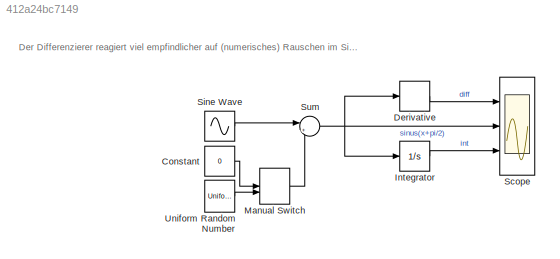
MODEL slx_412a24bc7149
KIND model
CONFIG AbsTol = auto
CONFIG EnableMultiTasking = off
CONFIG FixedStep = auto
CONFIG MaxStep = auto
CONFIG MinStep = auto
CONFIG RelTol = 1e-3
CONFIG SampleTimeConstraint = Unconstrained
CONFIG SolverName = VariableStepAuto
CONFIG StartTime = 0.0
CONFIG StopTime = 10
BLOCK [Constant] Constant
  Value = 0
BLOCK [Derivative] Derivative
BLOCK [Integrator] Integrator
  Ports = [1, 1]
BLOCK [ManualSwitch] Manual Switch
  CurrentSetting = 0
BLOCK [Scope] Scope
  Floating = off
  NumInputPorts = 3
  Ports = [3]
  ScopeSpecificationString = Simulink.scopes.TimeScopeBlockCfg('CurrentConfiguration', extmgr.ConfigurationSet(extmgr.Configuration('Core','General UI',true),extmgr.Configuration('Core','Source UI',true),extmgr.Configuration('Sources','WiredSimulink',true),extmgr.Configuration('Visuals','Time Domain',true,'SerializedDisplays',{struct('MinYLimReal','-1.61333','MaxYLimReal','1.47016','YLabelReal','','MinYLimMag','0.00000','MaxY...<+1398ch>
BLOCK [Sin] Sine Wave
  Phase = pi/2
  Ports = [0, 1]
  SampleTime = 0
BLOCK [Sum] Sum
  Inputs = |++
  Ports = [2, 1]
BLOCK [UniformRandomNumber] Uniform Random Number
  Maximum = 0.025
  Minimum = -0.025
  SampleTime = 0.1
ANNOTATION (root): Der Differenzierer reagiert viel empfindlicher auf (numerisches) Rauschen im Signal und sollte möglichst nicht verwendet werden!
LINE Constant:1 -> Manual Switch:1
LINE Derivative:1 -> Scope:1
LINE Integrator:1 -> Scope:3
LINE Manual Switch:1 -> Sum:2
LINE Sine Wave:1 -> Sum:1
NET Sum:1 -> Derivative:1, Integrator:1, Scope:2
LINE Uniform Random Number:1 -> Manual Switch:2
note: NET lines group one-source signal fan-out (src -> all destinations, sorted); 1:1 wires keep LINE
